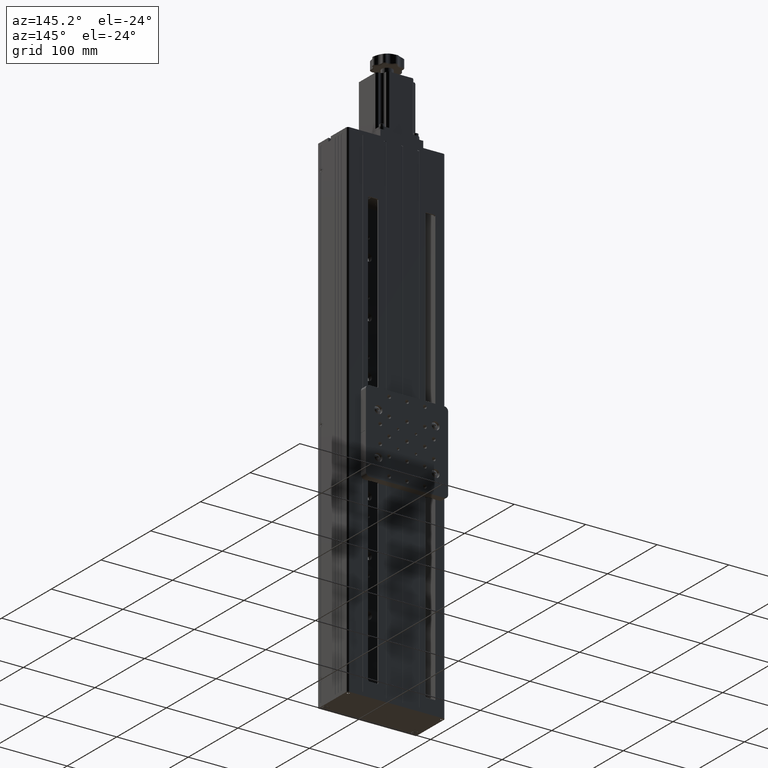
[diagram: clean part render]
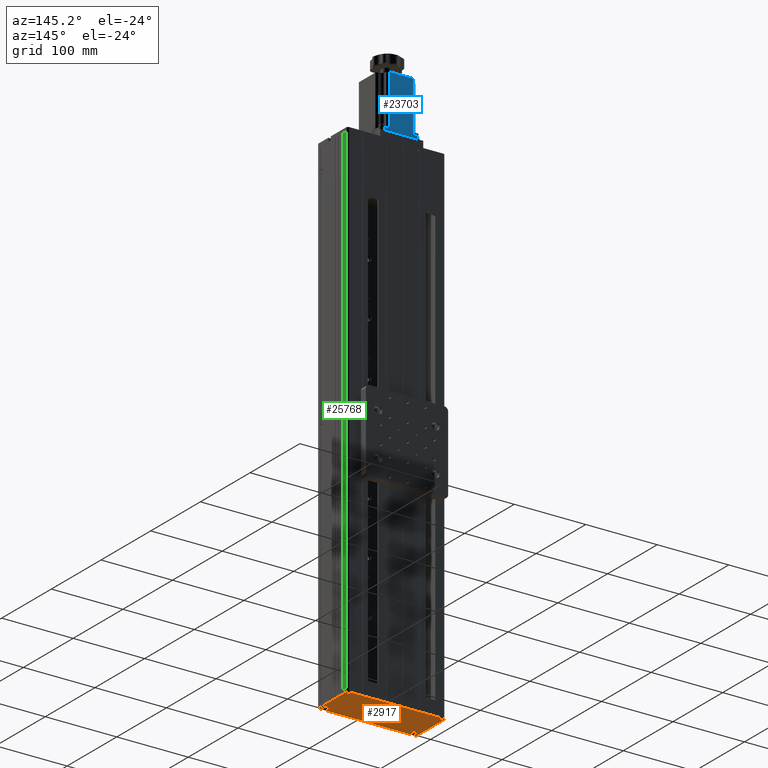
[diagram: same view with three faces highlighted in distinct colors, each labeled with its STEP entity id]
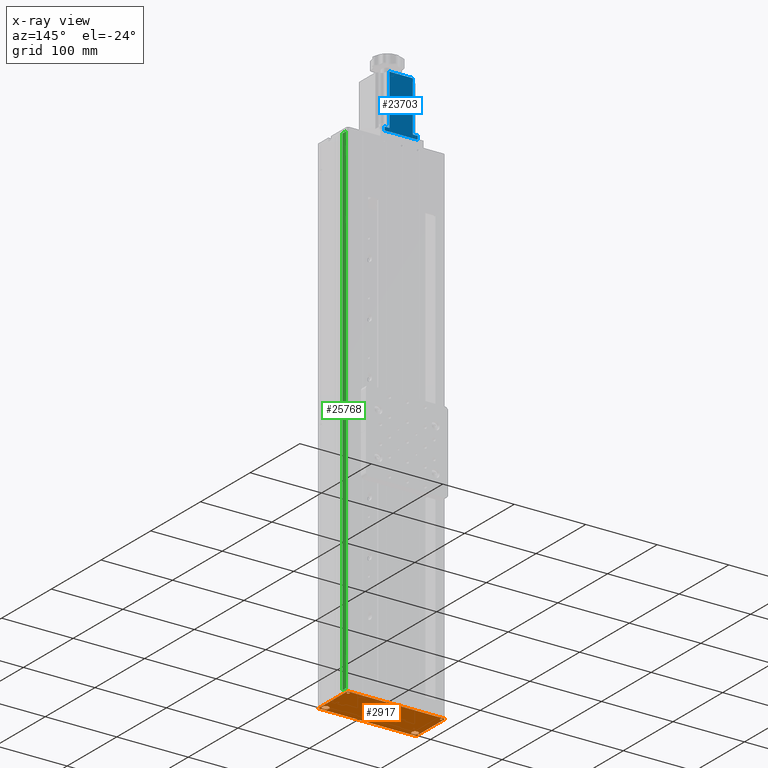
[diagram: x-ray of the same camera — body ghosted, the three highlighted faces saturated]
A machine part, auxiliary view with three faces highlighted in distinct colors.
The next image is the same camera in x-ray (body ghosted, the three faces saturated) — at least one of them is partly hidden behind the body in this view.
Their STEP definitions:

[orange] entity #2917 — the highlighted planar face has unit normal (0, 0, 1).
#246 = CARTESIAN_POINT ( 'NONE',  ( -70.93569268325123300, -18.67012639631454700, -603.8342676332766800 ) ) ;
#361 = VERTEX_POINT ( 'NONE', #766 ) ;
#452 = CARTESIAN_POINT ( 'NONE',  ( -191.2356926832512400, -18.67012639631454700, -603.8342676332766800 ) ) ;
#766 = CARTESIAN_POINT ( 'NONE',  ( -63.23569268325125800, 33.82987360368550600, -603.8342676332766800 ) ) ;
#1094 = CARTESIAN_POINT ( 'NONE',  ( -194.2356926832512400, 33.82987360368544200, -603.8342676332766800 ) ) ;
#1694 = AXIS2_PLACEMENT_3D ( 'NONE', #29310, #10157, #32563 ) ;
#2050 = VERTEX_POINT ( 'NONE', #246 ) ;
#2546 = EDGE_CURVE ( 'NONE', #24554, #19949, #34698, .T. ) ;
#2800 = ORIENTED_EDGE ( 'NONE', *, *, #37184, .F. ) ;
#2859 = EDGE_LOOP ( 'NONE', ( #30332, #34346, #27836, #25071, #2800, #38539 ) ) ;
#2866 = DIRECTION ( 'NONE',  ( 0.0000000000000000000, 0.0000000000000000000, 1.000000000000000000 ) ) ;
#2917 = ADVANCED_FACE ( 'NONE', ( #29148, #5628, #20665, #12161, #30158 ), #23405, .F. ) ;
#2955 = AXIS2_PLACEMENT_3D ( 'NONE', #25912, #25964, #25810 ) ;
#3021 = VERTEX_POINT ( 'NONE', #28044 ) ;
#3059 = DIRECTION ( 'NONE',  ( -0.0000000000000000000, 1.000000000000000000, -0.0000000000000000000 ) ) ;
#3156 = DIRECTION ( 'NONE',  ( -1.000000000000000000, 0.0000000000000000000, 0.0000000000000000000 ) ) ;
#3236 = DIRECTION ( 'NONE',  ( -0.0000000000000000000, -0.0000000000000000000, -1.000000000000000000 ) ) ;
#3705 = DIRECTION ( 'NONE',  ( -1.000000000000000000, 0.0000000000000000000, 0.0000000000000000000 ) ) ;
#3795 = CARTESIAN_POINT ( 'NONE',  ( -66.23569268325123000, -18.67012639631454700, -603.8342676332766800 ) ) ;
#3920 = CARTESIAN_POINT ( 'NONE',  ( -60.23569268325125100, 30.82987360368551000, -603.8342676332766800 ) ) ;
#4071 = VECTOR ( 'NONE', #36892, 1000.000000000000000 ) ;
#4192 = CARTESIAN_POINT ( 'NONE',  ( -195.3856926832512500, 30.32987360368551000, -603.8342676332766800 ) ) ;
#4545 = VERTEX_POINT ( 'NONE', #38371 ) ;
#5036 = ORIENTED_EDGE ( 'NONE', *, *, #9736, .F. ) ;
#5064 = LINE ( 'NONE', #23163, #4071 ) ;
#5628 = FACE_BOUND ( 'NONE', #21764, .T. ) ;
#6925 = CARTESIAN_POINT ( 'NONE',  ( -63.73569268325125800, 30.32987360368551000, -603.8342676332766800 ) ) ;
#7129 = EDGE_CURVE ( 'NONE', #8653, #24554, #5064, .T. ) ;
#7145 = DIRECTION ( 'NONE',  ( -0.0000000000000000000, -0.0000000000000000000, -1.000000000000000000 ) ) ;
#7553 = CARTESIAN_POINT ( 'NONE',  ( -61.53569268325123400, -18.67012639631454700, -603.8342676332766800 ) ) ;
#7986 = DIRECTION ( 'NONE',  ( 1.000000000000000000, 0.0000000000000000000, 0.0000000000000000000 ) ) ;
#8076 = DIRECTION ( 'NONE',  ( 0.0000000000000000000, 0.0000000000000000000, 1.000000000000000000 ) ) ;
#8078 = CARTESIAN_POINT ( 'NONE',  ( -63.73569268325125800, 30.32987360368551000, -603.8342676332766800 ) ) ;
#8147 = CARTESIAN_POINT ( 'NONE',  ( -63.23569268325125800, 30.82987360368551000, -603.8342676332766800 ) ) ;
#8653 = VERTEX_POINT ( 'NONE', #22424 ) ;
#9268 = ORIENTED_EDGE ( 'NONE', *, *, #11384, .T. ) ;
#9269 = AXIS2_PLACEMENT_3D ( 'NONE', #16032, #38393, #19229 ) ;
#9729 = EDGE_LOOP ( 'NONE', ( #9268, #18382 ) ) ;
#9736 = EDGE_CURVE ( 'NONE', #2050, #34614, #22162, .T. ) ;
#10153 = DIRECTION ( 'NONE',  ( 1.000000000000000000, 0.0000000000000000000, 0.0000000000000000000 ) ) ;
#10157 = DIRECTION ( 'NONE',  ( 0.0000000000000000000, 0.0000000000000000000, 1.000000000000000000 ) ) ;
#10561 = DIRECTION ( 'NONE',  ( 0.0000000000000000000, -1.000000000000000000, 0.0000000000000000000 ) ) ;
#10681 = DIRECTION ( 'NONE',  ( 0.0000000000000000000, 0.0000000000000000000, 1.000000000000000000 ) ) ;
#11007 = CARTESIAN_POINT ( 'NONE',  ( -195.9356926832512300, -18.67012639631454700, -603.8342676332766800 ) ) ;
#11288 = ORIENTED_EDGE ( 'NONE', *, *, #15940, .T. ) ;
#11384 = EDGE_CURVE ( 'NONE', #14970, #3021, #12060, .T. ) ;
#11391 = DIRECTION ( 'NONE',  ( 1.000000000000000000, 0.0000000000000000000, 0.0000000000000000000 ) ) ;
#11931 = VECTOR ( 'NONE', #17288, 1000.000000000000000 ) ;
#12060 = CIRCLE ( 'NONE', #29673, 1.649999999999998600 ) ;
#12161 = FACE_OUTER_BOUND ( 'NONE', #2859, .T. ) ;
#12266 = EDGE_CURVE ( 'NONE', #40792, #8653, #24327, .T. ) ;
#14114 = CARTESIAN_POINT ( 'NONE',  ( -194.2356926832512400, 33.82987360368544200, -603.8342676332766800 ) ) ;
#14857 = CIRCLE ( 'NONE', #17083, 1.650000000000012600 ) ;
#14864 = VECTOR ( 'NONE', #10561, 1000.000000000000000 ) ;
#14970 = VERTEX_POINT ( 'NONE', #26424 ) ;
#15734 = EDGE_CURVE ( 'NONE', #34614, #2050, #26840, .T. ) ;
#15940 = EDGE_CURVE ( 'NONE', #4545, #29852, #14857, .T. ) ;
#16032 = CARTESIAN_POINT ( 'NONE',  ( -66.23569268325123000, -18.67012639631454700, -603.8342676332766800 ) ) ;
#16739 = VERTEX_POINT ( 'NONE', #1094 ) ;
#17083 = AXIS2_PLACEMENT_3D ( 'NONE', #29841, #10681, #33077 ) ;
#17288 = DIRECTION ( 'NONE',  ( -1.000000000000000000, -4.502335739176445500E-016, -0.0000000000000000000 ) ) ;
#18382 = ORIENTED_EDGE ( 'NONE', *, *, #37306, .T. ) ;
#19229 = DIRECTION ( 'NONE',  ( -1.000000000000000000, 0.0000000000000000000, 0.0000000000000000000 ) ) ;
#19511 = CIRCLE ( 'NONE', #35075, 4.699999999999981500 ) ;
#19832 = EDGE_CURVE ( 'NONE', #19949, #361, #26919, .T. ) ;
#19949 = VERTEX_POINT ( 'NONE', #37554 ) ;
#20665 = FACE_BOUND ( 'NONE', #9729, .T. ) ;
#20816 = CARTESIAN_POINT ( 'NONE',  ( -60.23569268325125100, -25.17012639631448700, -603.8342676332766800 ) ) ;
#21764 = EDGE_LOOP ( 'NONE', ( #33182, #33456 ) ) ;
#22089 = CARTESIAN_POINT ( 'NONE',  ( -194.2356926832512400, 30.82987360368544900, -603.8342676332766800 ) ) ;
#22162 = CIRCLE ( 'NONE', #41135, 4.699999999999995700 ) ;
#22424 = CARTESIAN_POINT ( 'NONE',  ( -197.2356926832512400, -25.17012639631454400, -603.8342676332766800 ) ) ;
#22468 = CARTESIAN_POINT ( 'NONE',  ( -197.2356926832512400, 30.82987360368544900, -603.8342676332766800 ) ) ;
#22868 = DIRECTION ( 'NONE',  ( -0.0000000000000000000, -0.0000000000000000000, -1.000000000000000000 ) ) ;
#22987 = CIRCLE ( 'NONE', #1694, 1.650000000000012600 ) ;
#23163 = CARTESIAN_POINT ( 'NONE',  ( -197.2356926832512400, -25.17012639631454400, -603.8342676332766800 ) ) ;
#23405 = PLANE ( 'NONE',  #2955 ) ;
#23411 = EDGE_CURVE ( 'NONE', #31203, #34501, #19511, .T. ) ;
#24223 = CARTESIAN_POINT ( 'NONE',  ( -186.5356926832512600, -18.67012639631454700, -603.8342676332766800 ) ) ;
#24327 = LINE ( 'NONE', #29713, #14864 ) ;
#24554 = VERTEX_POINT ( 'NONE', #20816 ) ;
#25071 = ORIENTED_EDGE ( 'NONE', *, *, #12266, .F. ) ;
#25261 = DIRECTION ( 'NONE',  ( 1.000000000000000000, 0.0000000000000000000, 0.0000000000000000000 ) ) ;
#25810 = DIRECTION ( 'NONE',  ( 1.000000000000000000, 0.0000000000000000000, -0.0000000000000000000 ) ) ;
#25865 = CIRCLE ( 'NONE', #36331, 4.699999999999981500 ) ;
#25912 = CARTESIAN_POINT ( 'NONE',  ( -63.23569268325125800, 30.82987360368551000, -603.8342676332766800 ) ) ;
#25964 = DIRECTION ( 'NONE',  ( 0.0000000000000000000, 0.0000000000000000000, 1.000000000000000000 ) ) ;
#26309 = CARTESIAN_POINT ( 'NONE',  ( -191.2356926832512400, -18.67012639631454700, -603.8342676332766800 ) ) ;
#26424 = CARTESIAN_POINT ( 'NONE',  ( -62.08569268325126000, 30.32987360368551000, -603.8342676332766800 ) ) ;
#26681 = EDGE_CURVE ( 'NONE', #361, #16739, #28928, .T. ) ;
#26840 = CIRCLE ( 'NONE', #9269, 4.699999999999995700 ) ;
#26919 = CIRCLE ( 'NONE', #38409, 3.000000000000002700 ) ;
#27474 = EDGE_LOOP ( 'NONE', ( #5036, #28674 ) ) ;
#27836 = ORIENTED_EDGE ( 'NONE', *, *, #7129, .F. ) ;
#28044 = CARTESIAN_POINT ( 'NONE',  ( -65.38569268325125000, 30.32987360368551000, -603.8342676332766800 ) ) ;
#28477 = AXIS2_PLACEMENT_3D ( 'NONE', #22089, #2866, #25261 ) ;
#28674 = ORIENTED_EDGE ( 'NONE', *, *, #15734, .F. ) ;
#28864 = EDGE_LOOP ( 'NONE', ( #11288, #36981 ) ) ;
#28928 = LINE ( 'NONE', #14114, #11931 ) ;
#29148 = FACE_BOUND ( 'NONE', #27474, .T. ) ;
#29302 = DIRECTION ( 'NONE',  ( 0.0000000000000000000, 0.0000000000000000000, 1.000000000000000000 ) ) ;
#29310 = CARTESIAN_POINT ( 'NONE',  ( -193.7356926832512400, 30.32987360368551000, -603.8342676332766800 ) ) ;
#29563 = DIRECTION ( 'NONE',  ( -1.000000000000000000, 0.0000000000000000000, 0.0000000000000000000 ) ) ;
#29673 = AXIS2_PLACEMENT_3D ( 'NONE', #8078, #8076, #7986 ) ;
#29713 = CARTESIAN_POINT ( 'NONE',  ( -197.2356926832512400, 30.82987360368544900, -603.8342676332766800 ) ) ;
#29806 = AXIS2_PLACEMENT_3D ( 'NONE', #6925, #29302, #10153 ) ;
#29841 = CARTESIAN_POINT ( 'NONE',  ( -193.7356926832512400, 30.32987360368551000, -603.8342676332766800 ) ) ;
#29852 = VERTEX_POINT ( 'NONE', #4192 ) ;
#30158 = FACE_BOUND ( 'NONE', #28864, .T. ) ;
#30317 = EDGE_CURVE ( 'NONE', #29852, #4545, #22987, .T. ) ;
#30332 = ORIENTED_EDGE ( 'NONE', *, *, #19832, .F. ) ;
#30559 = DIRECTION ( 'NONE',  ( 0.0000000000000000000, 0.0000000000000000000, 1.000000000000000000 ) ) ;
#31203 = VERTEX_POINT ( 'NONE', #11007 ) ;
#31711 = CIRCLE ( 'NONE', #29806, 1.649999999999998600 ) ;
#32563 = DIRECTION ( 'NONE',  ( 1.000000000000000000, 0.0000000000000000000, 0.0000000000000000000 ) ) ;
#33077 = DIRECTION ( 'NONE',  ( 1.000000000000000000, 0.0000000000000000000, 0.0000000000000000000 ) ) ;
#33182 = ORIENTED_EDGE ( 'NONE', *, *, #23411, .F. ) ;
#33262 = EDGE_CURVE ( 'NONE', #34501, #31203, #25865, .T. ) ;
#33456 = ORIENTED_EDGE ( 'NONE', *, *, #33262, .F. ) ;
#33722 = VECTOR ( 'NONE', #3059, 1000.000000000000000 ) ;
#34346 = ORIENTED_EDGE ( 'NONE', *, *, #2546, .F. ) ;
#34501 = VERTEX_POINT ( 'NONE', #24223 ) ;
#34614 = VERTEX_POINT ( 'NONE', #7553 ) ;
#34698 = LINE ( 'NONE', #3920, #33722 ) ;
#35075 = AXIS2_PLACEMENT_3D ( 'NONE', #452, #22868, #3705 ) ;
#36240 = CIRCLE ( 'NONE', #28477, 3.000000000000002700 ) ;
#36331 = AXIS2_PLACEMENT_3D ( 'NONE', #26309, #7145, #29563 ) ;
#36892 = DIRECTION ( 'NONE',  ( 1.000000000000000000, 4.305153152059228700E-016, 0.0000000000000000000 ) ) ;
#36981 = ORIENTED_EDGE ( 'NONE', *, *, #30317, .T. ) ;
#37184 = EDGE_CURVE ( 'NONE', #16739, #40792, #36240, .T. ) ;
#37306 = EDGE_CURVE ( 'NONE', #3021, #14970, #31711, .T. ) ;
#37554 = CARTESIAN_POINT ( 'NONE',  ( -60.23569268325125100, 30.82987360368551000, -603.8342676332766800 ) ) ;
#38371 = CARTESIAN_POINT ( 'NONE',  ( -192.0856926832512400, 30.32987360368551000, -603.8342676332766800 ) ) ;
#38393 = DIRECTION ( 'NONE',  ( -0.0000000000000000000, -0.0000000000000000000, -1.000000000000000000 ) ) ;
#38409 = AXIS2_PLACEMENT_3D ( 'NONE', #8147, #30559, #11391 ) ;
#38539 = ORIENTED_EDGE ( 'NONE', *, *, #26681, .F. ) ;
#40792 = VERTEX_POINT ( 'NONE', #22468 ) ;
#41135 = AXIS2_PLACEMENT_3D ( 'NONE', #3795, #3236, #3156 ) ;

[blue] entity #23703 — the highlighted planar face has unit normal (-0, -1, -0).
#107 = CARTESIAN_POINT ( 'NONE',  ( -159.2356926832513300, 32.32987360368545600, 120.1657323667233500 ) ) ;
#314 = DIRECTION ( 'NONE',  ( 1.000000000000000000, -5.679980295626915300E-016, -0.0000000000000000000 ) ) ;
#1151 = CARTESIAN_POINT ( 'NONE',  ( -119.6656926832512100, 32.32987360368544200, 190.9657323667233300 ) ) ;
#3016 = DIRECTION ( 'NONE',  ( -0.0000000000000000000, 0.0000000000000000000, 1.000000000000000000 ) ) ;
#3154 = CARTESIAN_POINT ( 'NONE',  ( -108.2356926832512000, 32.32987360368544200, 120.1657323667233500 ) ) ;
#4491 = FACE_OUTER_BOUND ( 'NONE', #41222, .T. ) ;
#4881 = LINE ( 'NONE', #3154, #20916 ) ;
#5049 = VERTEX_POINT ( 'NONE', #1151 ) ;
#6396 = DIRECTION ( 'NONE',  ( 1.000000000000000000, -5.679980295626915300E-016, -0.0000000000000000000 ) ) ;
#6958 = ORIENTED_EDGE ( 'NONE', *, *, #31014, .T. ) ;
#7201 = VERTEX_POINT ( 'NONE', #24986 ) ;
#7639 = VECTOR ( 'NONE', #32237, 1000.000000000000000 ) ;
#8736 = VECTOR ( 'NONE', #39265, 1000.000000000000000 ) ;
#8849 = LINE ( 'NONE', #19541, #33395 ) ;
#9459 = DIRECTION ( 'NONE',  ( 1.000000000000000000, -5.679980295626915300E-016, -0.0000000000000000000 ) ) ;
#9593 = ORIENTED_EDGE ( 'NONE', *, *, #24848, .T. ) ;
#9747 = LINE ( 'NONE', #26523, #8736 ) ;
#10167 = ORIENTED_EDGE ( 'NONE', *, *, #23275, .F. ) ;
#10777 = EDGE_CURVE ( 'NONE', #31620, #23828, #12176, .T. ) ;
#11242 = AXIS2_PLACEMENT_3D ( 'NONE', #37808, #18637, #41020 ) ;
#12176 = LINE ( 'NONE', #23510, #27141 ) ;
#13886 = EDGE_CURVE ( 'NONE', #5049, #28121, #33215, .T. ) ;
#13943 = CARTESIAN_POINT ( 'NONE',  ( -159.2356926832513300, 32.32987360368545600, 115.1657323667232300 ) ) ;
#15015 = VECTOR ( 'NONE', #3016, 1000.000000000000000 ) ;
#15888 = VECTOR ( 'NONE', #24697, 1000.000000000000000 ) ;
#16007 = LINE ( 'NONE', #41353, #15015 ) ;
#16022 = LINE ( 'NONE', #28612, #33044 ) ;
#17327 = ORIENTED_EDGE ( 'NONE', *, *, #30196, .T. ) ;
#17365 = VERTEX_POINT ( 'NONE', #34116 ) ;
#18508 = PLANE ( 'NONE',  #11242 ) ;
#18637 = DIRECTION ( 'NONE',  ( -5.679980295626915300E-016, -1.000000000000000000, -0.0000000000000000000 ) ) ;
#18815 = ORIENTED_EDGE ( 'NONE', *, *, #13886, .T. ) ;
#19541 = CARTESIAN_POINT ( 'NONE',  ( -108.2356926832512000, 32.32987360368544200, 190.9657323667233300 ) ) ;
#20916 = VECTOR ( 'NONE', #6396, 1000.000000000000000 ) ;
#23275 = EDGE_CURVE ( 'NONE', #31620, #34623, #16022, .T. ) ;
#23354 = DIRECTION ( 'NONE',  ( -0.0000000000000000000, 0.0000000000000000000, 1.000000000000000000 ) ) ;
#23510 = CARTESIAN_POINT ( 'NONE',  ( -159.2356926832513300, 32.32987360368545600, 115.1657323667232300 ) ) ;
#23703 = ADVANCED_FACE ( 'NONE', ( #4491 ), #18508, .F. ) ;
#23828 = VERTEX_POINT ( 'NONE', #107 ) ;
#24312 = ORIENTED_EDGE ( 'NONE', *, *, #10777, .T. ) ;
#24697 = DIRECTION ( 'NONE',  ( 0.0000000000000000000, -0.0000000000000000000, -1.000000000000000000 ) ) ;
#24848 = EDGE_CURVE ( 'NONE', #28121, #37331, #9747, .T. ) ;
#24986 = CARTESIAN_POINT ( 'NONE',  ( -152.8056926832512700, 32.32987360368544900, 190.9657323667233300 ) ) ;
#25382 = LINE ( 'NONE', #37734, #15888 ) ;
#26210 = CARTESIAN_POINT ( 'NONE',  ( -113.2356926832512000, 32.32987360368544200, 120.1657323667233500 ) ) ;
#26523 = CARTESIAN_POINT ( 'NONE',  ( -108.2356926832512000, 32.32987360368544200, 120.1657323667233500 ) ) ;
#27141 = VECTOR ( 'NONE', #23354, 1000.000000000000000 ) ;
#28121 = VERTEX_POINT ( 'NONE', #40519 ) ;
#28612 = CARTESIAN_POINT ( 'NONE',  ( -108.2356926832512000, 32.32987360368544200, 115.1657323667232300 ) ) ;
#29033 = CARTESIAN_POINT ( 'NONE',  ( -119.6656926832512100, 32.32987360368544200, 115.1657323667232300 ) ) ;
#29976 = CARTESIAN_POINT ( 'NONE',  ( -113.2356926832512000, 32.32987360368544200, 115.1657323667232300 ) ) ;
#30196 = EDGE_CURVE ( 'NONE', #17365, #7201, #16007, .T. ) ;
#31014 = EDGE_CURVE ( 'NONE', #23828, #17365, #4881, .T. ) ;
#31620 = VERTEX_POINT ( 'NONE', #13943 ) ;
#32237 = DIRECTION ( 'NONE',  ( 0.0000000000000000000, 0.0000000000000000000, -1.000000000000000000 ) ) ;
#33044 = VECTOR ( 'NONE', #9459, 1000.000000000000000 ) ;
#33215 = LINE ( 'NONE', #29033, #7639 ) ;
#33395 = VECTOR ( 'NONE', #314, 1000.000000000000000 ) ;
#34116 = CARTESIAN_POINT ( 'NONE',  ( -152.8056926832512700, 32.32987360368544900, 120.1657323667233500 ) ) ;
#34623 = VERTEX_POINT ( 'NONE', #29976 ) ;
#35587 = EDGE_CURVE ( 'NONE', #37331, #34623, #25382, .T. ) ;
#35809 = EDGE_CURVE ( 'NONE', #7201, #5049, #8849, .T. ) ;
#37331 = VERTEX_POINT ( 'NONE', #26210 ) ;
#37734 = CARTESIAN_POINT ( 'NONE',  ( -113.2356926832512000, 32.32987360368544200, 115.1657323667232300 ) ) ;
#37808 = CARTESIAN_POINT ( 'NONE',  ( -108.2356926832512000, 32.32987360368544200, 115.1657323667232300 ) ) ;
#38847 = ORIENTED_EDGE ( 'NONE', *, *, #35809, .T. ) ;
#39265 = DIRECTION ( 'NONE',  ( 1.000000000000000000, -5.679980295626915300E-016, -0.0000000000000000000 ) ) ;
#40057 = ORIENTED_EDGE ( 'NONE', *, *, #35587, .T. ) ;
#40519 = CARTESIAN_POINT ( 'NONE',  ( -119.6656926832512100, 32.32987360368544200, 120.1657323667233500 ) ) ;
#41020 = DIRECTION ( 'NONE',  ( -1.000000000000000000, 5.679980295626915300E-016, 0.0000000000000000000 ) ) ;
#41222 = EDGE_LOOP ( 'NONE', ( #6958, #17327, #38847, #18815, #9593, #40057, #10167, #24312 ) ) ;
#41353 = CARTESIAN_POINT ( 'NONE',  ( -152.8056926832512700, 32.32987360368544900, 190.9657323667233300 ) ) ;

[green] entity #25768 — the highlighted planar face has unit normal (-1, 0, 0).
#101 = CARTESIAN_POINT ( 'NONE',  ( -60.23569268325129400, 23.82987360368544900, 101.1657323667232800 ) ) ;
#2094 = CARTESIAN_POINT ( 'NONE',  ( -60.23569268325129400, 30.82987360368544900, 101.1657323667232800 ) ) ;
#2409 = VERTEX_POINT ( 'NONE', #41546 ) ;
#3354 = DIRECTION ( 'NONE',  ( 0.0000000000000000000, 0.0000000000000000000, 1.000000000000000000 ) ) ;
#3671 = LINE ( 'NONE', #20066, #19688 ) ;
#4312 = CARTESIAN_POINT ( 'NONE',  ( -60.23569268325129400, 23.82987360368544900, 101.1657323667232800 ) ) ;
#8179 = CARTESIAN_POINT ( 'NONE',  ( -60.23569268325129400, 23.82987360368544900, 101.1657323667232800 ) ) ;
#9054 = EDGE_CURVE ( 'NONE', #2409, #22871, #3671, .T. ) ;
#9630 = CARTESIAN_POINT ( 'NONE',  ( -60.23569268325129400, 30.82987360368544900, 101.1657323667232800 ) ) ;
#10560 = FACE_OUTER_BOUND ( 'NONE', #26157, .T. ) ;
#11273 = DIRECTION ( 'NONE',  ( -0.0000000000000000000, -0.0000000000000000000, -1.000000000000000000 ) ) ;
#11770 = LINE ( 'NONE', #29365, #36305 ) ;
#14716 = ORIENTED_EDGE ( 'NONE', *, *, #9054, .T. ) ;
#15031 = DIRECTION ( 'NONE',  ( -0.0000000000000000000, -0.0000000000000000000, -1.000000000000000000 ) ) ;
#16183 = EDGE_CURVE ( 'NONE', #17469, #22871, #23297, .T. ) ;
#17469 = VERTEX_POINT ( 'NONE', #9630 ) ;
#17865 = ORIENTED_EDGE ( 'NONE', *, *, #19297, .T. ) ;
#19297 = EDGE_CURVE ( 'NONE', #26031, #2409, #33460, .T. ) ;
#19688 = VECTOR ( 'NONE', #20896, 1000.000000000000000 ) ;
#20066 = CARTESIAN_POINT ( 'NONE',  ( -60.23569268325129400, 23.82987360368544900, -598.8342676332768000 ) ) ;
#20120 = CARTESIAN_POINT ( 'NONE',  ( -60.23569268325129400, 30.82987360368544900, -598.8342676332768000 ) ) ;
#20655 = EDGE_CURVE ( 'NONE', #26031, #17469, #11770, .T. ) ;
#20733 = ORIENTED_EDGE ( 'NONE', *, *, #16183, .F. ) ;
#20896 = DIRECTION ( 'NONE',  ( 0.0000000000000000000, 1.000000000000000000, 0.0000000000000000000 ) ) ;
#21475 = VECTOR ( 'NONE', #11273, 1000.000000000000000 ) ;
#21569 = AXIS2_PLACEMENT_3D ( 'NONE', #101, #22566, #3354 ) ;
#22566 = DIRECTION ( 'NONE',  ( -1.000000000000000000, 0.0000000000000000000, 0.0000000000000000000 ) ) ;
#22871 = VERTEX_POINT ( 'NONE', #20120 ) ;
#23297 = LINE ( 'NONE', #2094, #31811 ) ;
#25598 = PLANE ( 'NONE',  #21569 ) ;
#25768 = ADVANCED_FACE ( 'NONE', ( #10560 ), #25598, .F. ) ;
#26031 = VERTEX_POINT ( 'NONE', #4312 ) ;
#26157 = EDGE_LOOP ( 'NONE', ( #14716, #20733, #40413, #17865 ) ) ;
#29365 = CARTESIAN_POINT ( 'NONE',  ( -60.23569268325129400, 23.82987360368544900, 101.1657323667232800 ) ) ;
#31811 = VECTOR ( 'NONE', #15031, 1000.000000000000000 ) ;
#32617 = DIRECTION ( 'NONE',  ( 0.0000000000000000000, 1.000000000000000000, 0.0000000000000000000 ) ) ;
#33460 = LINE ( 'NONE', #8179, #21475 ) ;
#36305 = VECTOR ( 'NONE', #32617, 1000.000000000000000 ) ;
#40413 = ORIENTED_EDGE ( 'NONE', *, *, #20655, .F. ) ;
#41546 = CARTESIAN_POINT ( 'NONE',  ( -60.23569268325129400, 23.82987360368544900, -598.8342676332768000 ) ) ;